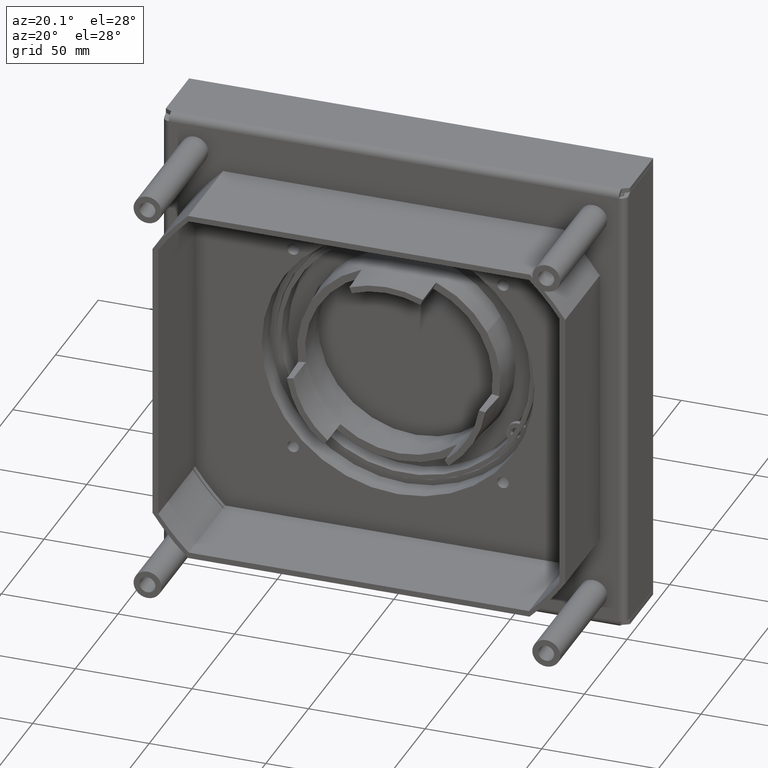
[diagram: clean part render]
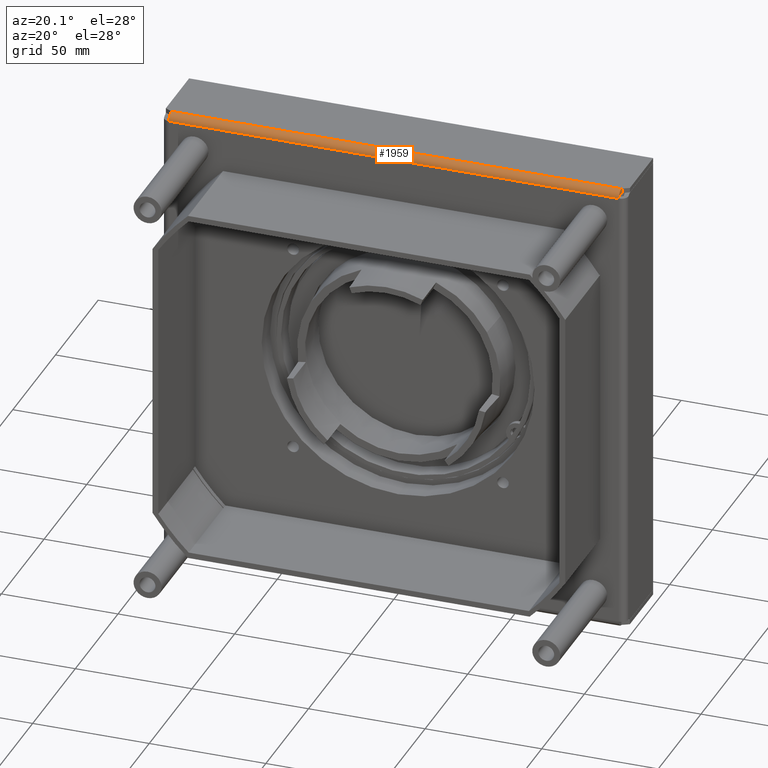
[diagram: same view with one face highlighted and labeled with its STEP entity id]
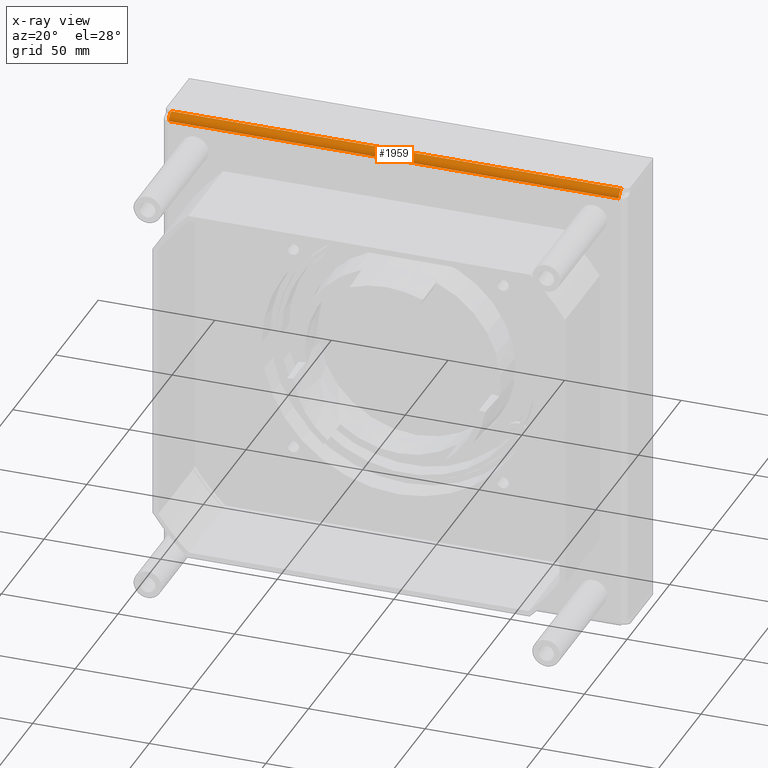
[diagram: x-ray of the same camera — body ghosted, the highlighted face saturated]
A machine part, auxiliary view. The second image highlights one B-rep face of the part: STEP entity #1959.
The next image is the same camera in x-ray: the body ghosted, the highlighted face saturated — about 0% of this face is hidden behind the body in this view.
In plain terms, the highlighted cylindrical surface (edge-blend (fillet) strip) has radius 3 mm, axis along (1, 0, 0).
Its self-contained STEP definition (entity closure, byte-faithful):
#968=DIRECTION('',(0.E0,0.E0,1.E0));
#969=VECTOR('',#968,1.93E2);
#970=CARTESIAN_POINT('',(-9.95E1,3.E0,-9.65E1));
#971=LINE('',#970,#969);
#975=CARTESIAN_POINT('',(-9.65E1,3.E0,9.65E1));
#976=DIRECTION('',(0.E0,0.E0,-1.E0));
#977=DIRECTION('',(0.E0,-1.E0,0.E0));
#978=AXIS2_PLACEMENT_3D('',#975,#976,#977);
#983=DIRECTION('',(0.E0,0.E0,-1.E0));
#984=VECTOR('',#983,1.93E2);
#985=CARTESIAN_POINT('',(-9.65E1,0.E0,9.65E1));
#986=LINE('',#985,#984);
#990=CARTESIAN_POINT('',(-9.65E1,3.E0,-9.65E1));
#991=DIRECTION('',(0.E0,0.E0,-1.E0));
#992=DIRECTION('',(0.E0,-1.E0,0.E0));
#993=AXIS2_PLACEMENT_3D('',#990,#991,#992);
#1146=CARTESIAN_POINT('',(-9.95E1,3.E0,-9.65E1));
#1147=VERTEX_POINT('',#1146);
#1154=CARTESIAN_POINT('',(-9.65E1,0.E0,-9.65E1));
#1155=VERTEX_POINT('',#1154);
#1174=CARTESIAN_POINT('',(-9.95E1,3.E0,9.65E1));
#1175=VERTEX_POINT('',#1174);
#1182=CARTESIAN_POINT('',(-9.65E1,0.E0,9.65E1));
#1183=VERTEX_POINT('',#1182);
#1947=CARTESIAN_POINT('',(-9.65E1,3.E0,-9.65E1));
#1948=DIRECTION('',(0.E0,0.E0,1.E0));
#1949=DIRECTION('',(-1.E0,0.E0,0.E0));
#1950=AXIS2_PLACEMENT_3D('',#1947,#1948,#1949);
#1951=CYLINDRICAL_SURFACE('',#1950,3.E0);
#1953=ORIENTED_EDGE('',*,*,#1952,.T.);
#1954=ORIENTED_EDGE('',*,*,#1901,.F.);
#1955=ORIENTED_EDGE('',*,*,#1265,.T.);
#1956=ORIENTED_EDGE('',*,*,#1875,.T.);
#1957=EDGE_LOOP('',(#1953,#1954,#1955,#1956));
#1958=FACE_OUTER_BOUND('',#1957,.F.);
#979=CIRCLE('',#978,3.E0);
#994=CIRCLE('',#993,3.E0);
#1265=EDGE_CURVE('',#1183,#1155,#986,.T.);
#1875=EDGE_CURVE('',#1155,#1147,#994,.T.);
#1901=EDGE_CURVE('',#1183,#1175,#979,.T.);
#1952=EDGE_CURVE('',#1147,#1175,#971,.T.);
#1959=ADVANCED_FACE('',(#1958),#1951,.T.);